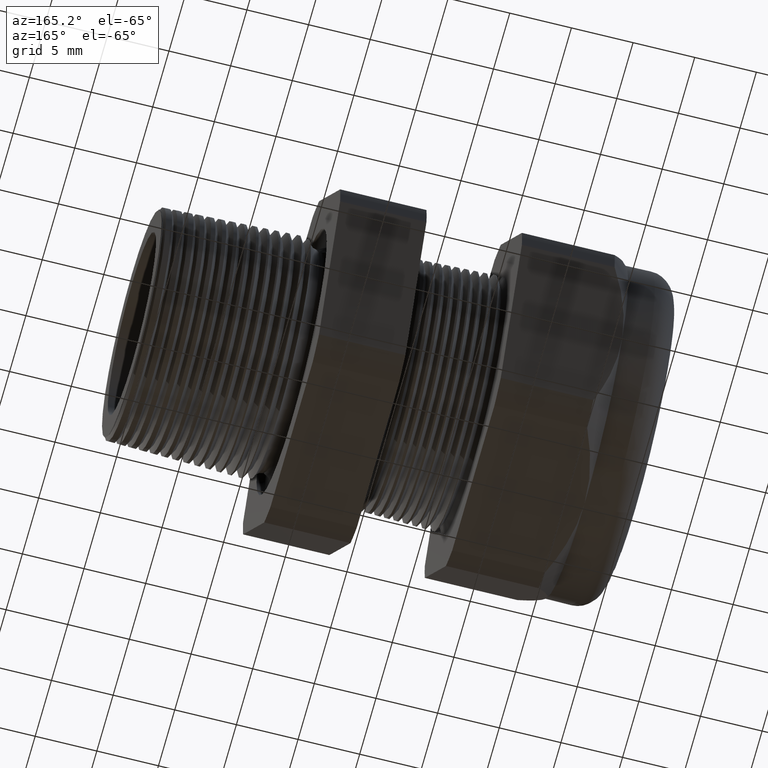
[diagram: clean part render]
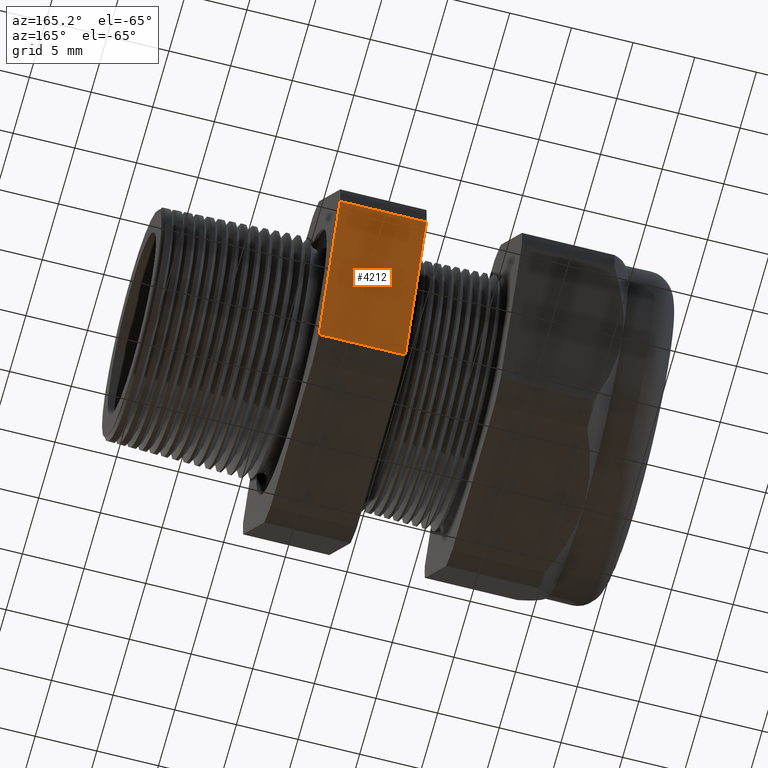
[diagram: same view with one face highlighted and labeled with its STEP entity id]
A machine part, auxiliary view. The second image highlights one B-rep face of the part: STEP entity #4212.
In plain terms, the highlighted planar face has unit normal (0, 0.866, -0.5).
Its self-contained STEP definition (entity closure, byte-faithful):
#69 = EDGE_CURVE ( 'NONE', #4328, #4257, #642, .T. ) ;
#639 = DIRECTION ( 'NONE',  ( -1.000000000000000000, 0.0000000000000000000, 0.0000000000000000000 ) ) ;
#640 = VECTOR ( 'NONE', #639, 39.37007874015748100 ) ;
#641 = CARTESIAN_POINT ( 'NONE',  ( 0.2000000000000000400, 0.5866618723924790200, -0.04387183015273728200 ) ) ;
#642 = LINE ( 'NONE', #641, #640 ) ;
#1765 = DIRECTION ( 'NONE',  ( 0.0000000000000000000, 0.4999999999999998300, 0.8660254037844386000 ) ) ;
#1766 = DIRECTION ( 'NONE',  ( 0.0000000000000000000, 0.8660254037844387100, -0.4999999999999998900 ) ) ;
#1767 = CARTESIAN_POINT ( 'NONE',  ( 0.2000000000000000400, 0.5866618723924790200, -0.04387183015273728200 ) ) ;
#1778 = PLANE ( 'NONE',  #1782 ) ;
#1780 = FACE_OUTER_BOUND ( 'NONE', #4205, .T. ) ;
#1782 = AXIS2_PLACEMENT_3D ( 'NONE', #1767, #1766, #1765 ) ;
#1817 = DIRECTION ( 'NONE',  ( 0.0000000000000000000, 0.4999999999999998300, 0.8660254037844386000 ) ) ;
#1818 = VECTOR ( 'NONE', #1817, 39.37007874015748900 ) ;
#1819 = CARTESIAN_POINT ( 'NONE',  ( -0.3100000000000000000, 0.7239934640057524900, 0.1939934640057524600 ) ) ;
#1820 = LINE ( 'NONE', #1819, #1818 ) ;
#1821 = DIRECTION ( 'NONE',  ( -1.000000000000000000, 0.0000000000000000000, 0.0000000000000000000 ) ) ;
#1822 = VECTOR ( 'NONE', #1821, 39.37007874015748100 ) ;
#1823 = CARTESIAN_POINT ( 'NONE',  ( 0.2000000000000000400, 0.3313250556190262000, -0.4861281698472627600 ) ) ;
#1824 = LINE ( 'NONE', #1823, #1822 ) ;
#1887 = CARTESIAN_POINT ( 'NONE',  ( -0.5855905511811020400, 0.5866618723924790200, -0.04387183015273728200 ) ) ;
#1905 = CARTESIAN_POINT ( 'NONE',  ( -0.5855905511811022600, 0.3313250556190261400, -0.4861281698472627600 ) ) ;
#1907 = DIRECTION ( 'NONE',  ( 0.0000000000000000000, -0.4999999999999998300, -0.8660254037844386000 ) ) ;
#1908 = VECTOR ( 'NONE', #1907, 39.37007874015748900 ) ;
#1909 = CARTESIAN_POINT ( 'NONE',  ( -0.5855905511811022600, 0.7239934640057524900, 0.1939934640057524600 ) ) ;
#1914 = LINE ( 'NONE', #1909, #1908 ) ;
#1952 = CARTESIAN_POINT ( 'NONE',  ( -0.3100000000000000000, 0.5866618723924790200, -0.04387183015273729600 ) ) ;
#2009 = CARTESIAN_POINT ( 'NONE',  ( -0.3099999999999998300, 0.3313250556190262000, -0.4861281698472627600 ) ) ;
#4202 = ORIENTED_EDGE ( 'NONE', *, *, #4213, .T. ) ;
#4205 = EDGE_LOOP ( 'NONE', ( #4202, #5265, #4238, #4236 ) ) ;
#4212 = ADVANCED_FACE ( 'NONE', ( #1780 ), #1778, .T. ) ;
#4213 = EDGE_CURVE ( 'NONE', #4332, #4286, #1824, .T. ) ;
#4217 = EDGE_CURVE ( 'NONE', #4332, #4328, #1820, .T. ) ;
#4236 = ORIENTED_EDGE ( 'NONE', *, *, #4217, .F. ) ;
#4238 = ORIENTED_EDGE ( 'NONE', *, *, #69, .F. ) ;
#4257 = VERTEX_POINT ( 'NONE', #1887 ) ;
#4284 = EDGE_CURVE ( 'NONE', #4257, #4286, #1914, .T. ) ;
#4286 = VERTEX_POINT ( 'NONE', #1905 ) ;
#4328 = VERTEX_POINT ( 'NONE', #1952 ) ;
#4332 = VERTEX_POINT ( 'NONE', #2009 ) ;
#5265 = ORIENTED_EDGE ( 'NONE', *, *, #4284, .F. ) ;